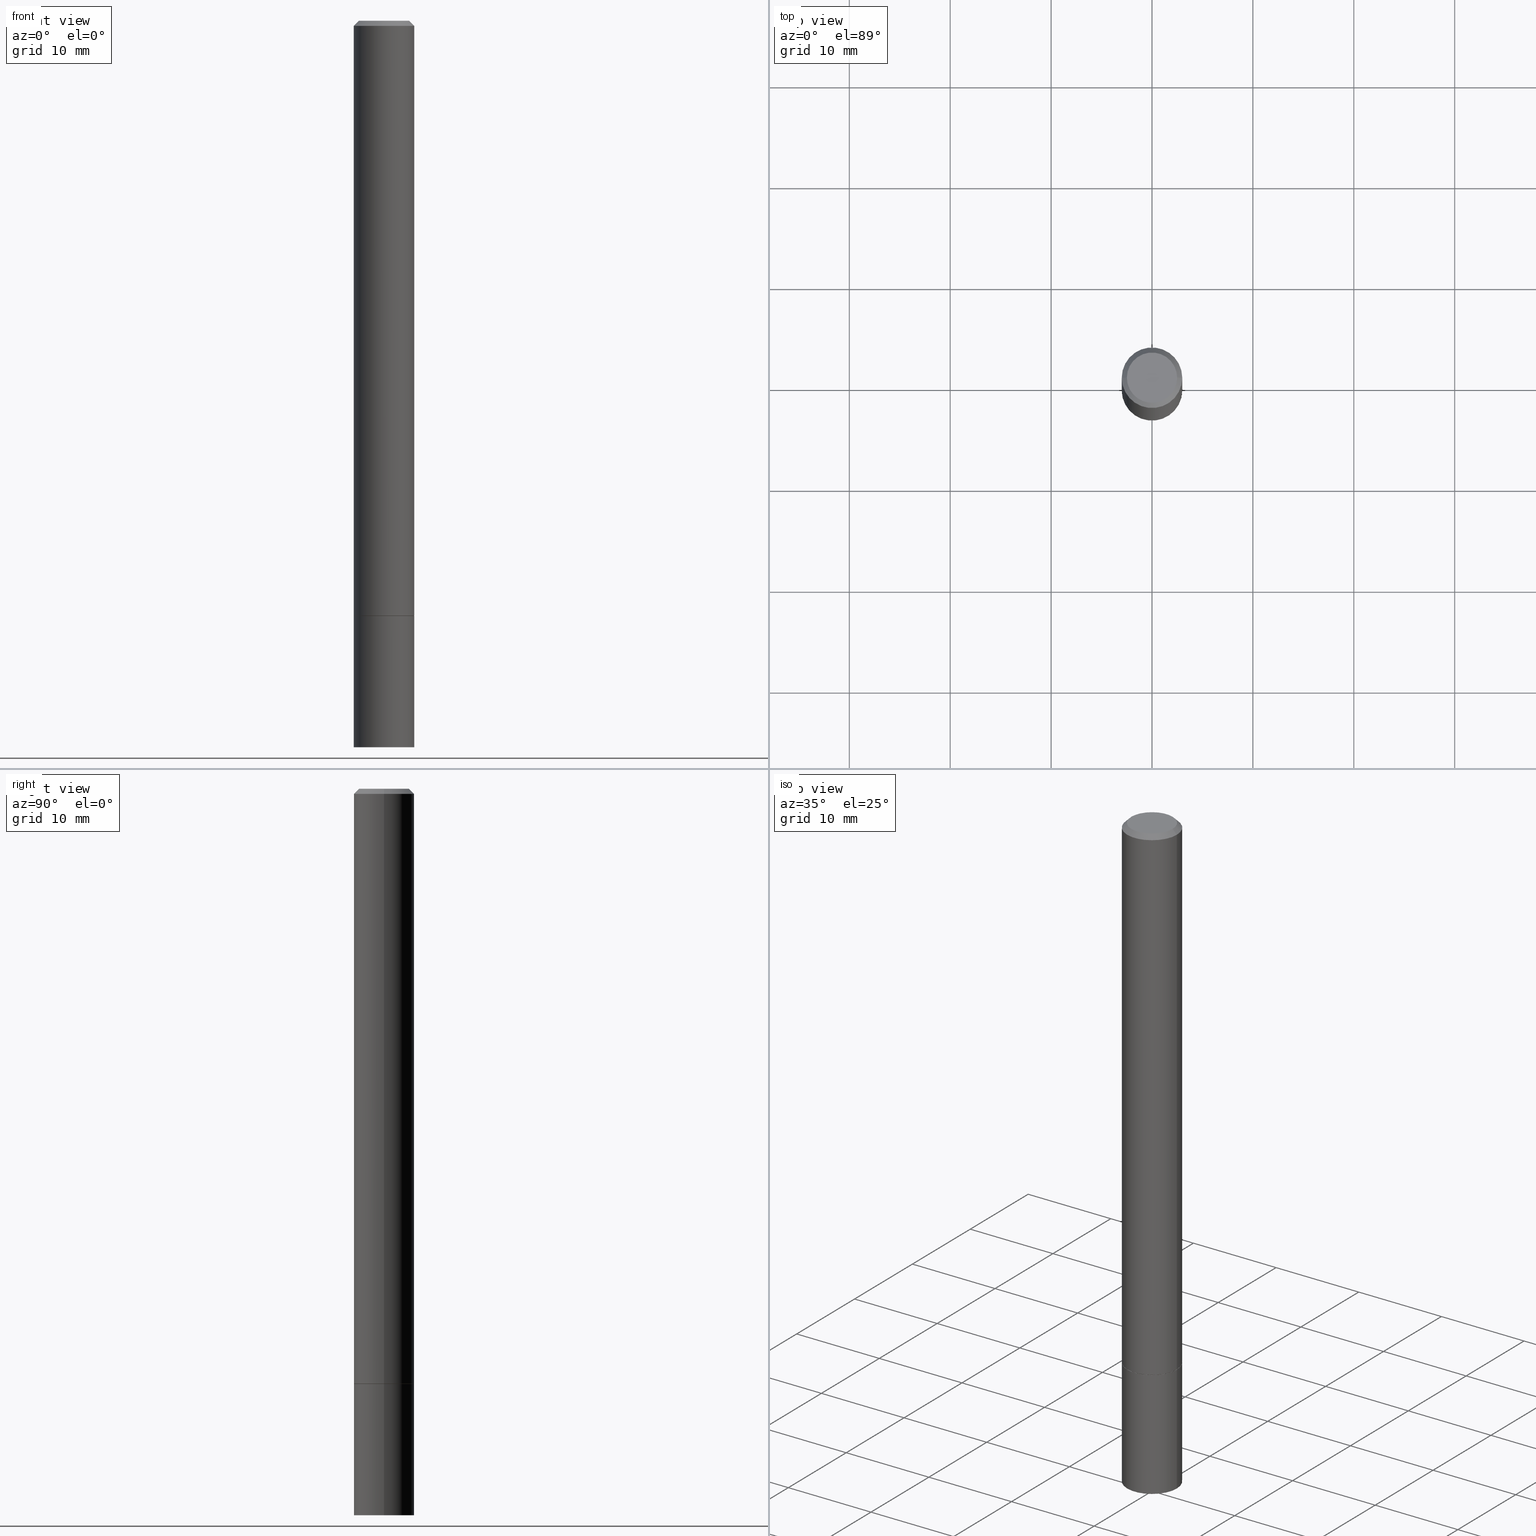
[diagram: canonical four-view strip — front | top / right | iso, engineering-drawing reading convention]
A machine part, canonical four-view strip (front | top / right | iso — engineering-drawing reading convention). The complete STEP part file that produces these views, byte-faithful:
ISO-10303-21;
HEADER;
FILE_DESCRIPTION (( 'STEP AP203' ),
    '1' );
FILE_NAME ('44702.STEP',
    '2024-02-28T07:29:01',
    ( '' ),
    ( '' ),
    'SwSTEP 2.0',
    'SolidWorks 2023',
    '' );
FILE_SCHEMA (( 'CONFIG_CONTROL_DESIGN' ));
ENDSEC;

DATA;
#1 = EDGE_CURVE ( 'NONE', #359, #251, #253, .T. ) ;
#2 = EDGE_LOOP ( 'NONE', ( #188, #232, #145, #312 ) ) ;
#3 = AXIS2_PLACEMENT_3D ( 'NONE', #282, #142, #252 ) ;
#4 =( GEOMETRIC_REPRESENTATION_CONTEXT ( 3 ) GLOBAL_UNCERTAINTY_ASSIGNED_CONTEXT ( ( #114 ) ) GLOBAL_UNIT_ASSIGNED_CONTEXT ( ( #25, #295, #138 ) ) REPRESENTATION_CONTEXT ( 'NONE', 'WORKASPACE' ) );
#5 = EDGE_LOOP ( 'NONE', ( #35, #149, #285, #202 ) ) ;
#6 = APPLICATION_CONTEXT ( 'configuration controlled 3d designs of mechanical parts and assemblies' ) ;
#7 = VERTEX_POINT ( 'NONE', #14 ) ;
#8 = DIRECTION ( 'NONE',  ( -2.445468806185136597E-29, 3.491481338843145583E-15, 1.000000000000000000 ) ) ;
#9 = CIRCLE ( 'NONE', #118, 0.1180999999999998301 ) ;
#10 = CARTESIAN_POINT ( 'NONE',  ( 0.1170999999999999958, -8.927717783421921083E-15, -2.322799999999999976 ) ) ;
#11 = DIRECTION ( 'NONE',  ( 1.000000000000000000, -6.982962677686272233E-15, 0.000000000000000000 ) ) ;
#12 = CC_DESIGN_PERSON_AND_ORGANIZATION_ASSIGNMENT ( #335, #108, ( #276 ) ) ;
#13 = PLANE ( 'NONE',  #159 ) ;
#14 = CARTESIAN_POINT ( 'NONE',  ( -0.1180999999999999966, -3.249024528718758999E-15, -2.321799999999999642 ) ) ;
#15 = AXIS2_PLACEMENT_3D ( 'NONE', #66, #175, #41 ) ;
#16 = DATE_TIME_ROLE ( 'creation_date' ) ;
#17 = VERTEX_POINT ( 'NONE', #240 ) ;
#18 =( LENGTH_UNIT ( ) NAMED_UNIT ( * ) SI_UNIT ( $, .METRE. ) );
#19 = COORDINATED_UNIVERSAL_TIME_OFFSET ( 5, 0, .BEHIND. ) ;
#20 = FACE_OUTER_BOUND ( 'NONE', #153, .T. ) ;
#21 = AXIS2_PLACEMENT_3D ( 'NONE', #323, #348, #11 ) ;
#22 = PERSON_AND_ORGANIZATION ( #61, #353 ) ;
#23 = ORIENTED_EDGE ( 'NONE', *, *, #311, .T. ) ;
#24 = ORIENTED_EDGE ( 'NONE', *, *, #180, .T. ) ;
#25 =( CONVERSION_BASED_UNIT ( 'INCH', #212 ) LENGTH_UNIT ( ) NAMED_UNIT ( #129 ) );
#26 = VERTEX_POINT ( 'NONE', #78 ) ;
#27 = EDGE_LOOP ( 'NONE', ( #117, #65, #319, #229 ) ) ;
#28 = DIRECTION ( 'NONE',  ( 1.000000000000000000, -6.982962677686266711E-15, 4.876176775795935793E-29 ) ) ;
#29 = ORIENTED_EDGE ( 'NONE', *, *, #201, .F. ) ;
#30 = PERSON_AND_ORGANIZATION ( #61, #353 ) ;
#31 = DIRECTION ( 'NONE',  ( 1.000000000000000000, -6.982962677686265922E-15, 4.876176775795935793E-29 ) ) ;
#32 = PRODUCT ( '44702', '44702', '', ( #50 ) ) ;
#33 = CONICAL_SURFACE ( 'NONE', #136, 0.1180999999999998301, 0.7853981633974473908 ) ;
#34 = AXIS2_PLACEMENT_3D ( 'NONE', #249, #191, #298 ) ;
#35 = ORIENTED_EDGE ( 'NONE', *, *, #54, .T. ) ;
#36 = DIRECTION ( 'NONE',  ( 1.000000000000000000, -6.982962677686266711E-15, 0.000000000000000000 ) ) ;
#37 = CARTESIAN_POINT ( 'NONE',  ( -0.09809999999999984011, 7.199434520694526251E-16, -4.695363739110943904E-17 ) ) ;
#38 = ORIENTED_EDGE ( 'NONE', *, *, #101, .T. ) ;
#39 = AXIS2_PLACEMENT_3D ( 'NONE', #190, #113, #60 ) ;
#40 = ADVANCED_FACE ( 'NONE', ( #244 ), #355, .T. ) ;
#41 = DIRECTION ( 'NONE',  ( 1.000000000000000000, -6.982962677686272233E-15, 0.000000000000000000 ) ) ;
#42 = DIRECTION ( 'NONE',  ( -2.445468806185136597E-29, 3.491481338843145583E-15, 1.000000000000000000 ) ) ;
#43 = EDGE_CURVE ( 'NONE', #17, #195, #269, .T. ) ;
#44 = CIRCLE ( 'NONE', #92, 0.1180999999999999966 ) ;
#45 = CC_DESIGN_APPROVAL ( #82, ( #276 ) ) ;
#46 = APPROVAL_ROLE ( '' ) ;
#47 = DIRECTION ( 'NONE',  ( 1.000000000000000000, -6.982962677686266711E-15, 4.876176775795936353E-29 ) ) ;
#48 = APPROVAL_DATE_TIME ( #270, #82 ) ;
#49 = APPLICATION_CONTEXT ( 'configuration controlled 3d designs of mechanical parts and assemblies' ) ;
#50 = MECHANICAL_CONTEXT ( 'NONE', #6, 'mechanical' ) ;
#51 = AXIS2_PLACEMENT_3D ( 'NONE', #84, #147, #55 ) ;
#52 = CC_DESIGN_APPROVAL ( #351, ( #209 ) ) ;
#53 = DIRECTION ( 'NONE',  ( 2.438088387897960049E-29, -3.491481338843145188E-15, -1.000000000000000000 ) ) ;
#54 = EDGE_CURVE ( 'NONE', #195, #17, #44, .T. ) ;
#55 = DIRECTION ( 'NONE',  ( 1.000000000000000000, -6.982962677686266711E-15, 4.877161320636775200E-29 ) ) ;
#56 = CARTESIAN_POINT ( 'NONE',  ( 0.000000000000000000, 0.000000000000000000, 0.000000000000000000 ) ) ;
#57 = ORIENTED_EDGE ( 'NONE', *, *, #54, .F. ) ;
#58 = EDGE_CURVE ( 'NONE', #251, #359, #258, .T. ) ;
#59 = AXIS2_PLACEMENT_3D ( 'NONE', #221, #193, #199 ) ;
#60 = DIRECTION ( 'NONE',  ( 1.000000000000000000, -6.982962677686265133E-15, 0.000000000000000000 ) ) ;
#61 = PERSON ( 'UNSPECIFIED', 'UNSPECIFIED', 'UNSPECIFIED', ('UNSPECIFIED'), ('UNSPECIFIED'), ('UNSPECIFIED') ) ;
#62 = EDGE_LOOP ( 'NONE', ( #302, #288, #23, #291 ) ) ;
#63 = APPROVAL_DATE_TIME ( #321, #314 ) ;
#64 = VECTOR ( 'NONE', #179, 39.37007874015748143 ) ;
#65 = ORIENTED_EDGE ( 'NONE', *, *, #336, .T. ) ;
#66 = CARTESIAN_POINT ( 'NONE',  ( 5.680334943006836279E-29, -8.110012853864858834E-15, -2.322799999999999976 ) ) ;
#67 = EDGE_CURVE ( 'NONE', #17, #359, #304, .T. ) ;
#68 = CARTESIAN_POINT ( 'NONE',  ( 0.1180999999999999134, -8.246878922347474737E-16, 5.758764772214996237E-30 ) ) ;
#69 = VECTOR ( 'NONE', #362, 39.37007874015748143 ) ;
#70 = CARTESIAN_POINT ( 'NONE',  ( 4.890937612370292426E-31, -6.982962677686317493E-17, -0.02000000000000007674 ) ) ;
#71 = PERSON_AND_ORGANIZATION ( #61, #353 ) ;
#72 = ADVANCED_FACE ( 'NONE', ( #20 ), #33, .T. ) ;
#73 = DIRECTION ( 'NONE',  ( -2.445468806185136597E-29, 3.491481338843145583E-15, 1.000000000000000000 ) ) ;
#74 = PERSON_AND_ORGANIZATION_ROLE ( 'design_owner' ) ;
#75 = DIRECTION ( 'NONE',  ( -1.000000000000000000, 6.982962677686266711E-15, 0.000000000000000000 ) ) ;
#76 = CIRCLE ( 'NONE', #292, 0.1180999999999999966 ) ;
#77 = APPROVAL_PERSON_ORGANIZATION ( #71, #351, #46 ) ;
#78 = CARTESIAN_POINT ( 'NONE',  ( -0.1170999999999999958, -7.272668855941559243E-15, -2.322799999999999976 ) ) ;
#79 = ORIENTED_EDGE ( 'NONE', *, *, #141, .F. ) ;
#80 = PERSON_AND_ORGANIZATION ( #61, #353 ) ;
#81 = DIRECTION ( 'NONE',  ( 1.000000000000000000, -6.982962677686273021E-15, 0.000000000000000000 ) ) ;
#82 = APPROVAL ( #164, 'UNSPECIFIED' ) ;
#83 = APPLICATION_PROTOCOL_DEFINITION ( 'international standard', 'config_control_design', 1994, #49 ) ;
#84 = CARTESIAN_POINT ( 'NONE',  ( 1.148236555768741665E-45, -1.639377487418492057E-31, -4.695363739110452099E-17 ) ) ;
#85 = APPROVAL_ROLE ( '' ) ;
#86 = CARTESIAN_POINT ( 'NONE',  ( 4.890937612370292426E-31, -6.982962677686317493E-17, -0.02000000000000007674 ) ) ;
#87 = CYLINDRICAL_SURFACE ( 'NONE', #90, 0.1180999999999999134 ) ;
#88 = EDGE_CURVE ( 'NONE', #115, #7, #107, .T. ) ;
#89 = ORIENTED_EDGE ( 'NONE', *, *, #43, .F. ) ;
#90 = AXIS2_PLACEMENT_3D ( 'NONE', #56, #284, #28 ) ;
#91 = COORDINATED_UNIVERSAL_TIME_OFFSET ( 5, 0, .BEHIND. ) ;
#92 = AXIS2_PLACEMENT_3D ( 'NONE', #133, #73, #81 ) ;
#93 = LINE ( 'NONE', #280, #69 ) ;
#94 = ADVANCED_BREP_SHAPE_REPRESENTATION ( '44702', ( #98, #217, #132 ), #4 ) ;
#95 = DIRECTION ( 'NONE',  ( 0.7071067811865469066, -7.319954787623254468E-15, -0.7071067811865482389 ) ) ;
#96 = AXIS2_PLACEMENT_3D ( 'NONE', #70, #326, #36 ) ;
#97 = CARTESIAN_POINT ( 'NONE',  ( 0.000000000000000000, 0.000000000000000000, 0.000000000000000000 ) ) ;
#98 = MANIFOLD_SOLID_BREP ( 'Body-Move/Copy2[1]', #215 ) ;
#99 = DIRECTION ( 'NONE',  ( 1.000000000000000000, -6.982962677686266711E-15, 4.876176775795935793E-29 ) ) ;
#100 = LINE ( 'NONE', #10, #163 ) ;
#101 = EDGE_CURVE ( 'NONE', #195, #251, #316, .T. ) ;
#102 = DIRECTION ( 'NONE',  ( -2.445468806185136597E-29, 3.491481338843145583E-15, 1.000000000000000000 ) ) ;
#103 = CC_DESIGN_PERSON_AND_ORGANIZATION_ASSIGNMENT ( #287, #144, ( #178 ) ) ;
#104 = LINE ( 'NONE', #182, #297 ) ;
#105 = ORIENTED_EDGE ( 'NONE', *, *, #213, .T. ) ;
#106 = EDGE_LOOP ( 'NONE', ( #299, #344 ) ) ;
#107 = CIRCLE ( 'NONE', #39, 0.1180999999999999966 ) ;
#108 = PERSON_AND_ORGANIZATION_ROLE ( 'creator' ) ;
#109 = ORIENTED_EDGE ( 'NONE', *, *, #1, .F. ) ;
#110 = AXIS2_PLACEMENT_3D ( 'NONE', #97, #324, #155 ) ;
#111 = LOCAL_TIME ( 2, 29, 1.000000000000000000, #260 ) ;
#112 = APPROVAL_STATUS ( 'not_yet_approved' ) ;
#113 = DIRECTION ( 'NONE',  ( -2.445468806185136597E-29, 3.491481338843145583E-15, 1.000000000000000000 ) ) ;
#114 = UNCERTAINTY_MEASURE_WITH_UNIT (LENGTH_MEASURE( 1.000000000000000082E-05 ), #25, 'distance_accuracy_value', 'NONE');
#115 = VERTEX_POINT ( 'NONE', #139 ) ;
#116 = CARTESIAN_POINT ( 'NONE',  ( 0.1180999999999999966, -8.246878922347480654E-16, 5.758764772215000440E-30 ) ) ;
#117 = ORIENTED_EDGE ( 'NONE', *, *, #88, .T. ) ;
#118 = AXIS2_PLACEMENT_3D ( 'NONE', #206, #8, #128 ) ;
#119 = FACE_OUTER_BOUND ( 'NONE', #366, .T. ) ;
#120 = ADVANCED_FACE ( 'NONE', ( #250 ), #339, .F. ) ;
#121 = VERTEX_POINT ( 'NONE', #343 ) ;
#122 = FACE_OUTER_BOUND ( 'NONE', #271, .T. ) ;
#123 = ORIENTED_EDGE ( 'NONE', *, *, #67, .F. ) ;
#124 = ADVANCED_FACE ( 'NONE', ( #119 ), #293, .T. ) ;
#125 = CIRCLE ( 'NONE', #15, 0.1170999999999999958 ) ;
#126 = DIRECTION ( 'NONE',  ( 1.000000000000000000, -6.982962677686265133E-15, 0.000000000000000000 ) ) ;
#127 = CYLINDRICAL_SURFACE ( 'NONE', #150, 0.1180999999999999134 ) ;
#128 = DIRECTION ( 'NONE',  ( 1.000000000000000000, -6.982962677686266711E-15, 0.000000000000000000 ) ) ;
#129 = DIMENSIONAL_EXPONENTS ( 1.000000000000000000, 0.000000000000000000, 0.000000000000000000, 0.000000000000000000, 0.000000000000000000, 0.000000000000000000, 0.000000000000000000 ) ;
#130 = CARTESIAN_POINT ( 'NONE',  ( 8.246878922348172879E-16, 0.1180999999999901018, -2.834600000000000453 ) ) ;
#131 = AXIS2_PLACEMENT_3D ( 'NONE', #86, #309, #228 ) ;
#132 = AXIS2_PLACEMENT_3D ( 'NONE', #333, #248, #242 ) ;
#133 = CARTESIAN_POINT ( 'NONE',  ( 6.931925878012387517E-29, -9.896953003084780885E-15, -2.834600000000000009 ) ) ;
#134 = DATE_AND_TIME ( #273, #160 ) ;
#135 = CARTESIAN_POINT ( 'NONE',  ( 4.890937612370292426E-31, -6.982962677686317493E-17, -0.02000000000000007674 ) ) ;
#136 = AXIS2_PLACEMENT_3D ( 'NONE', #135, #247, #75 ) ;
#137 = CONICAL_SURFACE ( 'NONE', #34, 0.1170999999999999958, 0.7853981633972775267 ) ;
#138 =( NAMED_UNIT ( * ) SI_UNIT ( $, .STERADIAN. ) SOLID_ANGLE_UNIT ( ) );
#139 = CARTESIAN_POINT ( 'NONE',  ( 0.1180999999999999966, -8.931209264760762512E-15, -2.321799999999999642 ) ) ;
#140 = ORIENTED_EDGE ( 'NONE', *, *, #58, .T. ) ;
#141 = EDGE_CURVE ( 'NONE', #121, #261, #290, .T. ) ;
#142 = DIRECTION ( 'NONE',  ( 2.438088387897960049E-29, -3.491481338843145188E-15, -1.000000000000000000 ) ) ;
#143 = EDGE_LOOP ( 'NONE', ( #156, #224 ) ) ;
#144 = PERSON_AND_ORGANIZATION_ROLE ( 'classification_officer' ) ;
#145 = ORIENTED_EDGE ( 'NONE', *, *, #268, .T. ) ;
#146 = DIRECTION ( 'NONE',  ( -2.445468806185136877E-29, 3.491481338843145188E-15, 1.000000000000000000 ) ) ;
#147 = DIRECTION ( 'NONE',  ( -2.445468806185136597E-29, 3.491481338843145583E-15, 1.000000000000000000 ) ) ;
#148 = EDGE_CURVE ( 'NONE', #261, #216, #93, .T. ) ;
#149 = ORIENTED_EDGE ( 'NONE', *, *, #67, .T. ) ;
#150 = AXIS2_PLACEMENT_3D ( 'NONE', #236, #350, #99 ) ;
#151 = SHAPE_DEFINITION_REPRESENTATION ( #279, #94 ) ;
#152 = CYLINDRICAL_SURFACE ( 'NONE', #110, 0.1180999999999999966 ) ;
#153 = EDGE_LOOP ( 'NONE', ( #79, #197, #105, #365 ) ) ;
#154 = EDGE_CURVE ( 'NONE', #254, #26, #327, .T. ) ;
#155 = DIRECTION ( 'NONE',  ( 1.000000000000000000, -6.982962677686266711E-15, 4.876176775795936353E-29 ) ) ;
#156 = ORIENTED_EDGE ( 'NONE', *, *, #186, .T. ) ;
#157 = FACE_OUTER_BOUND ( 'NONE', #267, .T. ) ;
#158 = CARTESIAN_POINT ( 'NONE',  ( 0.000000000000000000, 0.000000000000000000, 0.000000000000000000 ) ) ;
#159 = AXIS2_PLACEMENT_3D ( 'NONE', #130, #239, #354 ) ;
#160 = LOCAL_TIME ( 2, 29, 1.000000000000000000, #19 ) ;
#161 = DIRECTION ( 'NONE',  ( -1.000000000000000000, 6.982962677686265922E-15, -4.876176775795935793E-29 ) ) ;
#162 = DIRECTION ( 'NONE',  ( -2.445468806185136597E-29, 3.491481338843145583E-15, 1.000000000000000000 ) ) ;
#163 = VECTOR ( 'NONE', #294, 39.37007874015748143 ) ;
#164 = APPROVAL_STATUS ( 'not_yet_approved' ) ;
#165 = ADVANCED_FACE ( 'NONE', ( #310 ), #167, .F. ) ;
#166 = PERSON_AND_ORGANIZATION_ROLE ( 'design_supplier' ) ;
#167 = PLANE ( 'NONE',  #3 ) ;
#168 = VECTOR ( 'NONE', #95, 39.37007874015748143 ) ;
#169 = PERSON_AND_ORGANIZATION ( #61, #353 ) ;
#170 = ORIENTED_EDGE ( 'NONE', *, *, #1, .T. ) ;
#171 = ADVANCED_FACE ( 'NONE', ( #341 ), #87, .T. ) ;
#172 = ORIENTED_EDGE ( 'NONE', *, *, #186, .F. ) ;
#173 = CC_DESIGN_DATE_AND_TIME_ASSIGNMENT ( #196, #255, ( #178 ) ) ;
#174 = EDGE_LOOP ( 'NONE', ( #140, #170 ) ) ;
#175 = DIRECTION ( 'NONE',  ( -2.445468806185136597E-29, 3.491481338843145583E-15, 1.000000000000000000 ) ) ;
#176 = CARTESIAN_POINT ( 'NONE',  ( 0.1170999999999999958, -8.927717783421921083E-15, -2.322799999999999976 ) ) ;
#177 = CONICAL_SURFACE ( 'NONE', #21, 0.1170999999999999958, 0.7853981633972775267 ) ;
#178 = SECURITY_CLASSIFICATION ( '', '', #200 ) ;
#179 = DIRECTION ( 'NONE',  ( -2.445468806185136877E-29, 3.491481338843145188E-15, 1.000000000000000000 ) ) ;
#180 = EDGE_CURVE ( 'NONE', #26, #7, #329, .T. ) ;
#181 = CARTESIAN_POINT ( 'NONE',  ( 0.1180999999999998301, -8.800544403136798514E-16, -0.02000000000000007674 ) ) ;
#182 = CARTESIAN_POINT ( 'NONE',  ( -0.1180999999999999134, 8.391509709326777040E-16, -5.809262341591039580E-30 ) ) ;
#183 = CALENDAR_DATE ( 2024, 28, 2 ) ;
#184 = CLOSED_SHELL ( 'NONE', ( #347, #289, #72, #124, #171, #225, #120, #165 ) ) ;
#185 = LOCAL_TIME ( 2, 29, 1.000000000000000000, #360 ) ;
#186 = EDGE_CURVE ( 'NONE', #261, #121, #308, .T. ) ;
#187 = CARTESIAN_POINT ( 'NONE',  ( -0.1180999999999999966, 8.391509709326782957E-16, -5.809262341591043784E-30 ) ) ;
#188 = ORIENTED_EDGE ( 'NONE', *, *, #180, .F. ) ;
#189 = DATE_AND_TIME ( #218, #185 ) ;
#190 = CARTESIAN_POINT ( 'NONE',  ( 5.677889474200649555E-29, -8.106521372526014249E-15, -2.321799999999999642 ) ) ;
#191 = DIRECTION ( 'NONE',  ( -2.445468806185136597E-29, 3.491481338843145583E-15, 1.000000000000000000 ) ) ;
#192 = VECTOR ( 'NONE', #356, 39.37007874015748143 ) ;
#193 = DIRECTION ( 'NONE',  ( -2.445468806185136597E-29, 3.491481338843145583E-15, 1.000000000000000000 ) ) ;
#194 = DESIGN_CONTEXT ( 'detailed design', #49, 'design' ) ;
#195 = VERTEX_POINT ( 'NONE', #245 ) ;
#196 = DATE_AND_TIME ( #337, #227 ) ;
#197 = ORIENTED_EDGE ( 'NONE', *, *, #201, .T. ) ;
#198 = AXIS2_PLACEMENT_3D ( 'NONE', #296, #358, #272 ) ;
#199 = DIRECTION ( 'NONE',  ( 1.000000000000000000, -6.982962677686272233E-15, 0.000000000000000000 ) ) ;
#200 = SECURITY_CLASSIFICATION_LEVEL ( 'unclassified' ) ;
#201 = EDGE_CURVE ( 'NONE', #121, #315, #306, .T. ) ;
#202 = ORIENTED_EDGE ( 'NONE', *, *, #101, .F. ) ;
#203 = CIRCLE ( 'NONE', #96, 0.1180999999999998301 ) ;
#204 = CARTESIAN_POINT ( 'NONE',  ( 0.1180999999999998301, -8.800544403136798514E-16, -0.02000000000000007674 ) ) ;
#205 = CARTESIAN_POINT ( 'NONE',  ( 5.677889474200649555E-29, -8.106521372526014249E-15, -2.321799999999999642 ) ) ;
#206 = CARTESIAN_POINT ( 'NONE',  ( 4.890937612370292426E-31, -6.982962677686317493E-17, -0.02000000000000007674 ) ) ;
#207 = LINE ( 'NONE', #68, #64 ) ;
#208 = EDGE_CURVE ( 'NONE', #7, #115, #76, .T. ) ;
#209 = PRODUCT_DEFINITION_FORMATION_WITH_SPECIFIED_SOURCE ( 'ANY', '', #32, .NOT_KNOWN. ) ;
#210 = CARTESIAN_POINT ( 'NONE',  ( 8.246878922348047648E-16, 0.1180999999999918920, -2.322800000000000420 ) ) ;
#211 = DIRECTION ( 'NONE',  ( 1.000000000000000000, -6.982962677686273021E-15, 0.000000000000000000 ) ) ;
#212 = LENGTH_MEASURE_WITH_UNIT ( LENGTH_MEASURE( 0.02539999999999999897 ), #18 );
#213 = EDGE_CURVE ( 'NONE', #315, #216, #203, .T. ) ;
#214 = FACE_OUTER_BOUND ( 'NONE', #174, .T. ) ;
#215 = CLOSED_SHELL ( 'NONE', ( #40, #325, #357, #230 ) ) ;
#216 = VERTEX_POINT ( 'NONE', #235 ) ;
#217 = MANIFOLD_SOLID_BREP ( 'Body-Move/Copy2[2]', #184 ) ;
#218 = CALENDAR_DATE ( 2024, 28, 2 ) ;
#219 = DIRECTION ( 'NONE',  ( -2.445468806185136877E-29, 3.491481338843145188E-15, 1.000000000000000000 ) ) ;
#220 = CC_DESIGN_PERSON_AND_ORGANIZATION_ASSIGNMENT ( #22, #340, ( #209 ) ) ;
#221 = CARTESIAN_POINT ( 'NONE',  ( 5.680334943006836279E-29, -8.110012853864858834E-15, -2.322799999999999976 ) ) ;
#222 = AXIS2_PLACEMENT_3D ( 'NONE', #334, #42, #211 ) ;
#223 = APPROVAL_PERSON_ORGANIZATION ( #80, #82, #307 ) ;
#224 = ORIENTED_EDGE ( 'NONE', *, *, #141, .T. ) ;
#225 = ADVANCED_FACE ( 'NONE', ( #265 ), #177, .T. ) ;
#226 = VECTOR ( 'NONE', #146, 39.37007874015748143 ) ;
#227 = LOCAL_TIME ( 2, 29, 1.000000000000000000, #91 ) ;
#228 = DIRECTION ( 'NONE',  ( -1.000000000000000000, 6.982962677686266711E-15, 0.000000000000000000 ) ) ;
#229 = ORIENTED_EDGE ( 'NONE', *, *, #311, .F. ) ;
#230 = ADVANCED_FACE ( 'NONE', ( #122 ), #152, .T. ) ;
#231 = EDGE_LOOP ( 'NONE', ( #57, #89 ) ) ;
#232 = ORIENTED_EDGE ( 'NONE', *, *, #241, .T. ) ;
#233 = VECTOR ( 'NONE', #322, 39.37007874015748143 ) ;
#234 = FACE_OUTER_BOUND ( 'NONE', #27, .T. ) ;
#235 = CARTESIAN_POINT ( 'NONE',  ( -0.1180999999999998301, 7.548582654578836825E-16, -0.02000000000000007674 ) ) ;
#236 = CARTESIAN_POINT ( 'NONE',  ( 0.000000000000000000, 0.000000000000000000, 0.000000000000000000 ) ) ;
#237 = AXIS2_PLACEMENT_3D ( 'NONE', #158, #102, #47 ) ;
#238 = LOCAL_TIME ( 2, 29, 1.000000000000000000, #361 ) ;
#239 = DIRECTION ( 'NONE',  ( 2.438088387897960049E-29, -3.491481338843145188E-15, -1.000000000000000000 ) ) ;
#240 = CARTESIAN_POINT ( 'NONE',  ( -0.1180999999999999966, -8.164331957542140874E-15, -2.834600000000000009 ) ) ;
#241 = EDGE_CURVE ( 'NONE', #26, #254, #125, .T. ) ;
#242 = DIRECTION ( 'NONE',  ( 1.000000000000000000, 0.000000000000000000, 0.000000000000000000 ) ) ;
#243 = DIRECTION ( 'NONE',  ( 1.000000000000000000, -6.982962677686273021E-15, 0.000000000000000000 ) ) ;
#244 = FACE_OUTER_BOUND ( 'NONE', #5, .T. ) ;
#245 = CARTESIAN_POINT ( 'NONE',  ( 0.1180999999999999966, -1.072164089531952915E-14, -2.834600000000000009 ) ) ;
#246 = CARTESIAN_POINT ( 'NONE',  ( -0.1180999999999999966, -8.164331957542140874E-15, -2.322799999999999976 ) ) ;
#247 = DIRECTION ( 'NONE',  ( 2.445468806185136597E-29, -3.491481338843145583E-15, -1.000000000000000000 ) ) ;
#248 = DIRECTION ( 'NONE',  ( 0.000000000000000000, 0.000000000000000000, 1.000000000000000000 ) ) ;
#249 = CARTESIAN_POINT ( 'NONE',  ( 5.680334943006836279E-29, -8.110012853864858834E-15, -2.322799999999999976 ) ) ;
#250 = FACE_OUTER_BOUND ( 'NONE', #106, .T. ) ;
#251 = VERTEX_POINT ( 'NONE', #264 ) ;
#252 = DIRECTION ( 'NONE',  ( -1.000000000000000000, 6.982962677686265922E-15, -4.876176775795935793E-29 ) ) ;
#253 = CIRCLE ( 'NONE', #198, 0.1180999999999999966 ) ;
#254 = VERTEX_POINT ( 'NONE', #176 ) ;
#255 = DATE_TIME_ROLE ( 'classification_date' ) ;
#256 = CARTESIAN_POINT ( 'NONE',  ( 5.680334943006836279E-29, -8.110012853864858834E-15, -2.322799999999999976 ) ) ;
#257 = ORIENTED_EDGE ( 'NONE', *, *, #43, .T. ) ;
#258 = CIRCLE ( 'NONE', #352, 0.1180999999999999966 ) ;
#259 = CC_DESIGN_SECURITY_CLASSIFICATION ( #178, ( #209 ) ) ;
#260 = COORDINATED_UNIVERSAL_TIME_OFFSET ( 5, 0, .BEHIND. ) ;
#261 = VERTEX_POINT ( 'NONE', #37 ) ;
#262 = AXIS2_PLACEMENT_3D ( 'NONE', #210, #53, #161 ) ;
#263 = EDGE_CURVE ( 'NONE', #216, #315, #9, .T. ) ;
#264 = CARTESIAN_POINT ( 'NONE',  ( 0.1180999999999999966, -8.934700746099607097E-15, -2.322799999999999976 ) ) ;
#265 = FACE_OUTER_BOUND ( 'NONE', #2, .T. ) ;
#266 = FACE_OUTER_BOUND ( 'NONE', #231, .T. ) ;
#267 = EDGE_LOOP ( 'NONE', ( #277, #24, #342, #283 ) ) ;
#268 = EDGE_CURVE ( 'NONE', #254, #115, #100, .T. ) ;
#269 = CIRCLE ( 'NONE', #222, 0.1180999999999999966 ) ;
#270 = DATE_AND_TIME ( #183, #238 ) ;
#271 = EDGE_LOOP ( 'NONE', ( #123, #257, #38, #109 ) ) ;
#272 = DIRECTION ( 'NONE',  ( 1.000000000000000000, -6.982962677686273021E-15, 0.000000000000000000 ) ) ;
#273 = CALENDAR_DATE ( 2024, 28, 2 ) ;
#274 = ORIENTED_EDGE ( 'NONE', *, *, #148, .T. ) ;
#275 = APPROVAL_DATE_TIME ( #189, #351 ) ;
#276 = PRODUCT_DEFINITION ( 'UNKNOWN', '', #209, #194 ) ;
#277 = ORIENTED_EDGE ( 'NONE', *, *, #154, .T. ) ;
#278 = PLANE ( 'NONE',  #262 ) ;
#279 = PRODUCT_DEFINITION_SHAPE ( 'NONE', 'NONE',  #276 ) ;
#280 = CARTESIAN_POINT ( 'NONE',  ( -0.1180999999999998301, 7.548582654578836825E-16, -0.02000000000000007674 ) ) ;
#281 = CALENDAR_DATE ( 2024, 28, 2 ) ;
#282 = CARTESIAN_POINT ( 'NONE',  ( 6.850286386810215676E-16, 0.09809999999999984011, -3.659911380360642646E-16 ) ) ;
#283 = ORIENTED_EDGE ( 'NONE', *, *, #268, .F. ) ;
#284 = DIRECTION ( 'NONE',  ( -2.445468806185136597E-29, 3.491481338843145583E-15, 1.000000000000000000 ) ) ;
#285 = ORIENTED_EDGE ( 'NONE', *, *, #58, .F. ) ;
#286 = APPROVAL_PERSON_ORGANIZATION ( #30, #314, #85 ) ;
#287 = PERSON_AND_ORGANIZATION ( #61, #353 ) ;
#288 = ORIENTED_EDGE ( 'NONE', *, *, #208, .T. ) ;
#289 = ADVANCED_FACE ( 'NONE', ( #234 ), #127, .T. ) ;
#290 = CIRCLE ( 'NONE', #51, 0.09809999999999984011 ) ;
#291 = ORIENTED_EDGE ( 'NONE', *, *, #263, .F. ) ;
#292 = AXIS2_PLACEMENT_3D ( 'NONE', #205, #331, #126 ) ;
#293 = CONICAL_SURFACE ( 'NONE', #131, 0.1180999999999998301, 0.7853981633974473908 ) ;
#294 = DIRECTION ( 'NONE',  ( 0.7071067811864267805, -2.468850131080992517E-15, 0.7071067811866682540 ) ) ;
#295 =( NAMED_UNIT ( * ) PLANE_ANGLE_UNIT ( ) SI_UNIT ( $, .RADIAN. ) );
#296 = CARTESIAN_POINT ( 'NONE',  ( 5.680334943006835158E-29, -8.110012853864858834E-15, -2.322799999999999976 ) ) ;
#297 = VECTOR ( 'NONE', #219, 39.37007874015748143 ) ;
#298 = DIRECTION ( 'NONE',  ( 1.000000000000000000, -6.982962677686272233E-15, 0.000000000000000000 ) ) ;
#299 = ORIENTED_EDGE ( 'NONE', *, *, #154, .F. ) ;
#300 = CARTESIAN_POINT ( 'NONE',  ( 1.148236555768741665E-45, -1.639377487418492057E-31, -4.695363739110452099E-17 ) ) ;
#301 = PERSON_AND_ORGANIZATION ( #61, #353 ) ;
#302 = ORIENTED_EDGE ( 'NONE', *, *, #336, .F. ) ;
#303 = APPROVAL_STATUS ( 'not_yet_approved' ) ;
#304 = LINE ( 'NONE', #187, #192 ) ;
#305 = PRODUCT_RELATED_PRODUCT_CATEGORY ( 'detail', '', ( #32 ) ) ;
#306 = LINE ( 'NONE', #204, #168 ) ;
#307 = APPROVAL_ROLE ( '' ) ;
#308 = CIRCLE ( 'NONE', #338, 0.09809999999999984011 ) ;
#309 = DIRECTION ( 'NONE',  ( 2.445468806185136597E-29, -3.491481338843145583E-15, -1.000000000000000000 ) ) ;
#310 = FACE_OUTER_BOUND ( 'NONE', #143, .T. ) ;
#311 = EDGE_CURVE ( 'NONE', #115, #315, #207, .T. ) ;
#312 = ORIENTED_EDGE ( 'NONE', *, *, #208, .F. ) ;
#313 = DIRECTION ( 'NONE',  ( -2.438088387897960049E-29, 3.491481338843145188E-15, 1.000000000000000000 ) ) ;
#314 = APPROVAL ( #112, 'UNSPECIFIED' ) ;
#315 = VERTEX_POINT ( 'NONE', #181 ) ;
#316 = LINE ( 'NONE', #116, #226 ) ;
#317 = AXIS2_PLACEMENT_3D ( 'NONE', #256, #313, #31 ) ;
#318 = DIRECTION ( 'NONE',  ( -2.445468806185136597E-29, 3.491481338843145583E-15, 1.000000000000000000 ) ) ;
#319 = ORIENTED_EDGE ( 'NONE', *, *, #213, .F. ) ;
#320 = CC_DESIGN_DATE_AND_TIME_ASSIGNMENT ( #134, #16, ( #276 ) ) ;
#321 = DATE_AND_TIME ( #281, #111 ) ;
#322 = DIRECTION ( 'NONE',  ( -0.7071067811864267805, 7.493145998869918709E-15, 0.7071067811866682540 ) ) ;
#323 = CARTESIAN_POINT ( 'NONE',  ( 5.680334943006836279E-29, -8.110012853864858834E-15, -2.322799999999999976 ) ) ;
#324 = DIRECTION ( 'NONE',  ( -2.445468806185136597E-29, 3.491481338843145583E-15, 1.000000000000000000 ) ) ;
#325 = ADVANCED_FACE ( 'NONE', ( #266 ), #13, .T. ) ;
#326 = DIRECTION ( 'NONE',  ( -2.445468806185136597E-29, 3.491481338843145583E-15, 1.000000000000000000 ) ) ;
#327 = CIRCLE ( 'NONE', #59, 0.1170999999999999958 ) ;
#328 = CC_DESIGN_PERSON_AND_ORGANIZATION_ASSIGNMENT ( #169, #166, ( #209 ) ) ;
#329 = LINE ( 'NONE', #364, #233 ) ;
#330 = CARTESIAN_POINT ( 'NONE',  ( 5.680334943006835158E-29, -8.110012853864858834E-15, -2.322799999999999976 ) ) ;
#331 = DIRECTION ( 'NONE',  ( -2.445468806185136597E-29, 3.491481338843145583E-15, 1.000000000000000000 ) ) ;
#332 = APPLICATION_PROTOCOL_DEFINITION ( 'international standard', 'config_control_design', 1994, #6 ) ;
#333 = CARTESIAN_POINT ( 'NONE',  ( 0.000000000000000000, 0.000000000000000000, 0.000000000000000000 ) ) ;
#334 = CARTESIAN_POINT ( 'NONE',  ( 6.931925878012387517E-29, -9.896953003084780885E-15, -2.834600000000000009 ) ) ;
#335 = PERSON_AND_ORGANIZATION ( #61, #353 ) ;
#336 = EDGE_CURVE ( 'NONE', #7, #216, #104, .T. ) ;
#337 = CALENDAR_DATE ( 2024, 28, 2 ) ;
#338 = AXIS2_PLACEMENT_3D ( 'NONE', #300, #318, #349 ) ;
#339 = PLANE ( 'NONE',  #317 ) ;
#340 = PERSON_AND_ORGANIZATION_ROLE ( 'creator' ) ;
#341 = FACE_OUTER_BOUND ( 'NONE', #62, .T. ) ;
#342 = ORIENTED_EDGE ( 'NONE', *, *, #88, .F. ) ;
#343 = CARTESIAN_POINT ( 'NONE',  ( 0.09809999999999984011, -7.765346469475330681E-16, -4.695363739109941188E-17 ) ) ;
#344 = ORIENTED_EDGE ( 'NONE', *, *, #241, .F. ) ;
#345 = CC_DESIGN_APPROVAL ( #314, ( #178 ) ) ;
#346 = CC_DESIGN_PERSON_AND_ORGANIZATION_ASSIGNMENT ( #301, #74, ( #32 ) ) ;
#347 = ADVANCED_FACE ( 'NONE', ( #157 ), #137, .T. ) ;
#348 = DIRECTION ( 'NONE',  ( -2.445468806185136597E-29, 3.491481338843145583E-15, 1.000000000000000000 ) ) ;
#349 = DIRECTION ( 'NONE',  ( 1.000000000000000000, -6.982962677686266711E-15, 4.877161320636775200E-29 ) ) ;
#350 = DIRECTION ( 'NONE',  ( -2.445468806185136597E-29, 3.491481338843145583E-15, 1.000000000000000000 ) ) ;
#351 = APPROVAL ( #303, 'UNSPECIFIED' ) ;
#352 = AXIS2_PLACEMENT_3D ( 'NONE', #330, #162, #243 ) ;
#353 = ORGANIZATION ( 'UNSPECIFIED', 'UNSPECIFIED', '' ) ;
#354 = DIRECTION ( 'NONE',  ( -1.000000000000000000, 6.982962677686265922E-15, -4.876176775795935793E-29 ) ) ;
#355 = CYLINDRICAL_SURFACE ( 'NONE', #237, 0.1180999999999999966 ) ;
#356 = DIRECTION ( 'NONE',  ( -2.445468806185136877E-29, 3.491481338843145188E-15, 1.000000000000000000 ) ) ;
#357 = ADVANCED_FACE ( 'NONE', ( #214 ), #278, .F. ) ;
#358 = DIRECTION ( 'NONE',  ( -2.445468806185136597E-29, 3.491481338843145583E-15, 1.000000000000000000 ) ) ;
#359 = VERTEX_POINT ( 'NONE', #246 ) ;
#360 = COORDINATED_UNIVERSAL_TIME_OFFSET ( 5, 0, .BEHIND. ) ;
#361 = COORDINATED_UNIVERSAL_TIME_OFFSET ( 5, 0, .BEHIND. ) ;
#362 = DIRECTION ( 'NONE',  ( -0.7071067811865469066, 2.468850131082249961E-15, -0.7071067811865482389 ) ) ;
#363 = ORIENTED_EDGE ( 'NONE', *, *, #263, .T. ) ;
#364 = CARTESIAN_POINT ( 'NONE',  ( -0.1170999999999999958, -7.277967310289781645E-15, -2.322799999999999976 ) ) ;
#365 = ORIENTED_EDGE ( 'NONE', *, *, #148, .F. ) ;
#366 = EDGE_LOOP ( 'NONE', ( #29, #172, #274, #363 ) ) ;
ENDSEC;
END-ISO-10303-21;
